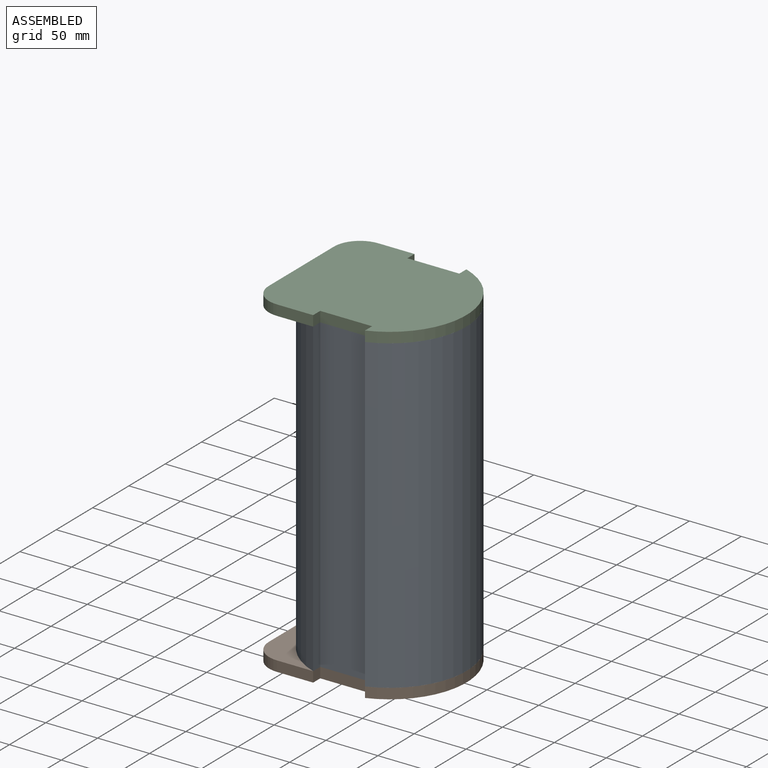
[diagram: assembled view]
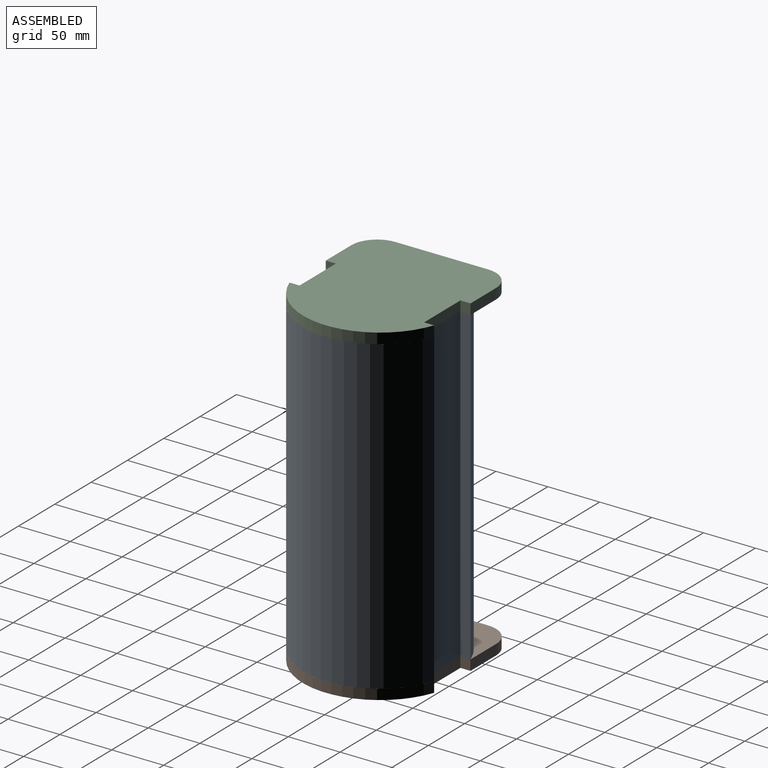
[diagram: assembled view, second angle]
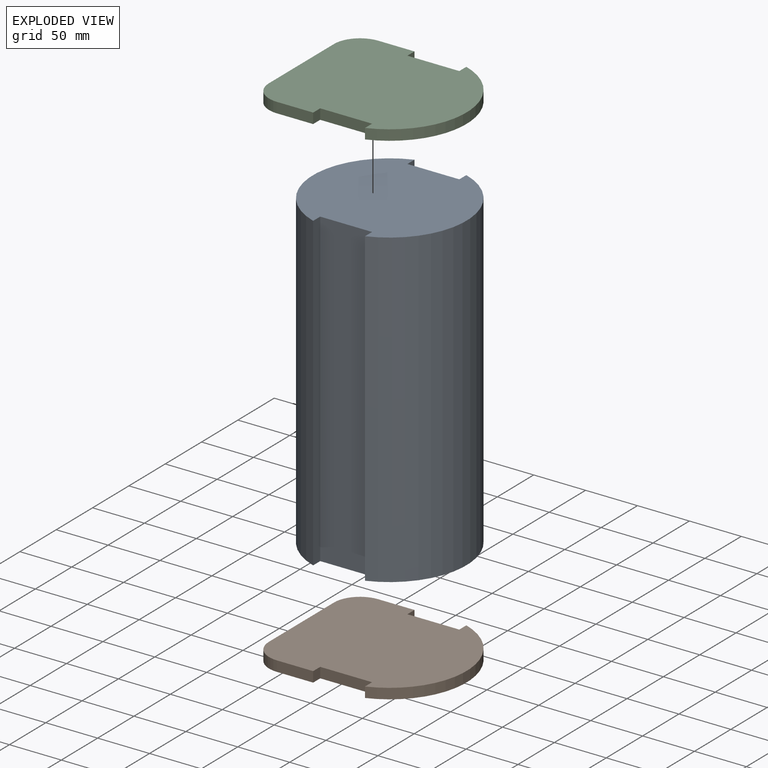
[diagram: exploded view]
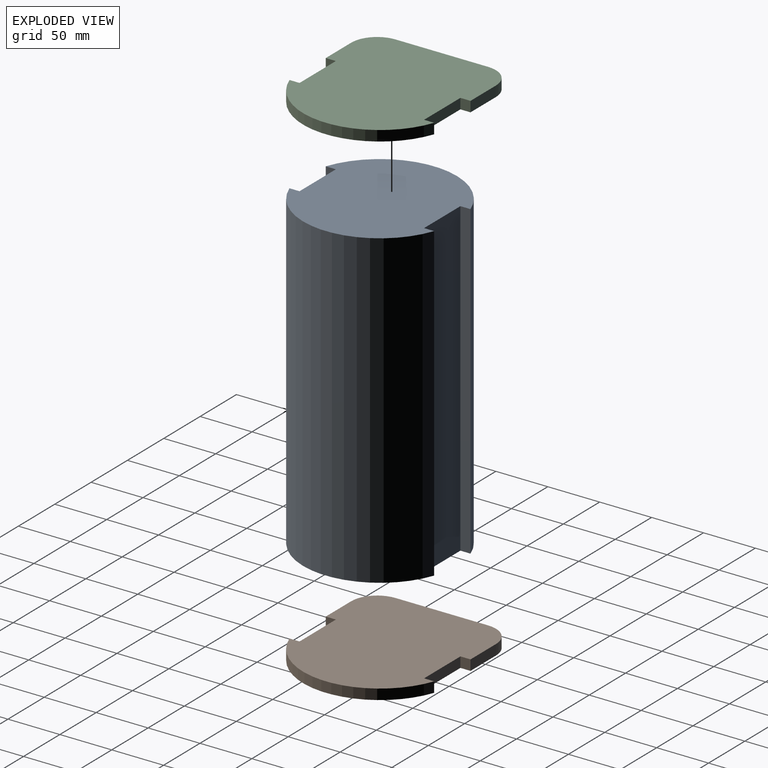
[diagram: exploded view, second angle]
ASSEMBLY  parts=3 mates=2
PART A: 10 faces, bbox 148.2x139.5x300 mm
  f0: plane 300x50mm, normal (0,1,0), area 15000mm2, adj f1,f7,f8,f9
  f1: plane 300x9.73mm, normal (1,0,0), area 2918.7mm2, adj f0,f2,f8,f9
  f2: cylinder r=74.08mm len=300mm, axis (0,0,-1), area 54513.8mm2, adj f1,f3,f8,f9
  f3: plane 300x9.73mm, normal (1,0,0), area 2918.7mm2, adj f2,f4,f8,f9
  f4: plane 300x50mm, normal (0,-1,0), area 15000mm2, adj f3,f5,f8,f9
  f5: plane 300x9.73mm, normal (-1,0,0), area 2918.7mm2, adj f4,f6,f8,f9
  f6: cylinder r=74.08mm len=300mm, axis (0,0,-1), area 54513.8mm2, adj f5,f7,f8,f9
  f7: plane 300x9.73mm, normal (-1,0,0), area 2918.7mm2, adj f0,f6,f8,f9
  f8: plane 148.15x139.46mm, normal (0,0,1), area 15973.9mm2, adj f0,f1,f2,f3,f4,f5,f6,f7
  f9: plane 148.15x139.46mm, normal (0,0,-1), area 15973.9mm2, adj f0,f1,f2,f3,f4,f5,f6,f7
PART B: 14 faces, bbox 159.1x139.5x10 mm
  f0: plane 50x10mm, normal (0,1,0), area 500mm2, adj f1,f11,f12,f13
  f1: plane 10x9.73mm, normal (1,0,0), area 97.3mm2, adj f0,f2,f12,f13
  f2: plane 34.9x10mm, normal (0,1,0), area 349mm2, adj f1,f3,f12,f13
  f3: cylinder r=25.1mm len=25.1mm, axis (0,0,-1), area 394.3mm2, adj f2,f4,f12,f13
  f4: plane 89.36x10mm, normal (-1,0,0), area 893.6mm2, adj f3,f5,f12,f13
  f5: cylinder r=25mm len=25mm, axis (0,0,-1), area 392.7mm2, adj f4,f6,f12,f13
  f6: plane 35x10mm, normal (0,-1,0), area 350mm2, adj f5,f7,f12,f13
  f7: plane 10x9.73mm, normal (1,0,0), area 97.3mm2, adj f6,f8,f12,f13
  f8: plane 50x10mm, normal (0,-1,0), area 500mm2, adj f7,f9,f12,f13
  f9: plane 10x9.73mm, normal (-1,0,0), area 97.3mm2, adj f8,f10,f12,f13
  f10: cylinder r=74.08mm len=139.46mm, axis (0,0,-1), area 1817.1mm2, adj f9,f11,f12,f13
  f11: plane 10x9.73mm, normal (-1,0,0), area 97.3mm2, adj f0,f10,f12,f13
  f12: plane 159.08x139.46mm, normal (0,0,1), area 19085.1mm2, adj f0,f1,f2,f3,f4,f5,f6,f7
  f13: plane 159.08x139.46mm, normal (0,0,-1), area 19085.1mm2, adj f0,f1,f2,f3,f4,f5,f6,f7
PART C: same geometry as B
PLACE A t=(-14.42,58.35,-49.99)mm
PLACE B rot(axis=(1,0,0),180deg) t=(-14.42,58.35,-49.99)mm
PLACE C t=(-14.42,58.35,250.01)mm
MATE fastened C.f10 <-> A.f6  axis (0,0,-1) through (-14.42,58.35,250.01)mm
MATE fastened B.f10 <-> A.f2  axis (0,0,1) through (-14.42,58.35,-49.99)mm
